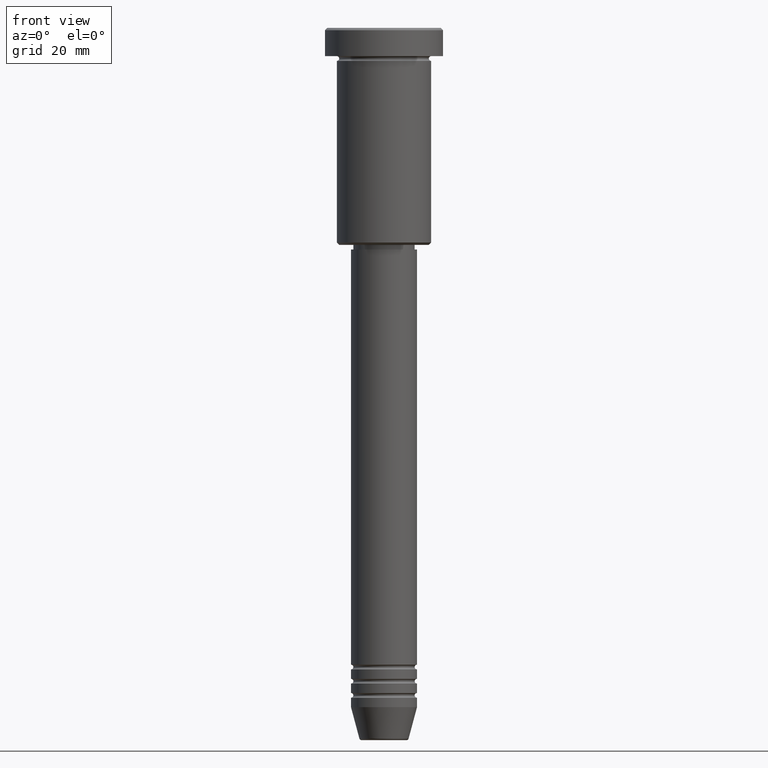
[diagram: clean part render]
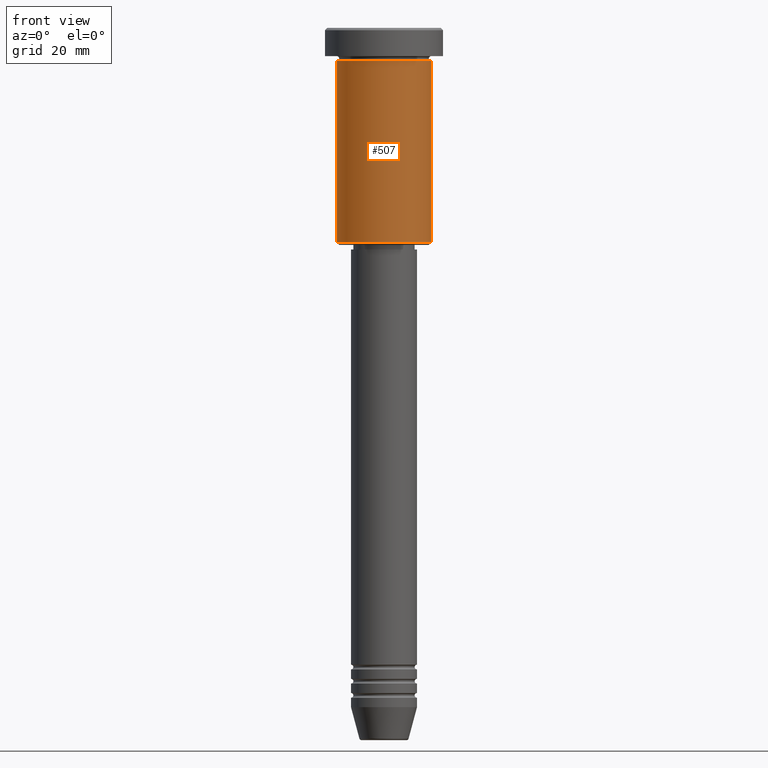
[diagram: same view with one face highlighted and labeled with its STEP entity id]
A machine part, front view. The second image highlights one B-rep face of the part: STEP entity #507.
In plain terms, the highlighted cylindrical surface (partial cylindrical patch) has radius 10 mm, axis along (-0, -0, 1).
Its self-contained STEP definition (entity closure, byte-faithful):
#32 = AXIS2_PLACEMENT_3D ( 'NONE', #942, #489, #855 ) ;
#49 = FACE_OUTER_BOUND ( 'NONE', #987, .T. ) ;
#66 = EDGE_CURVE ( 'NONE', #675, #476, #679, .T. ) ;
#68 = DIRECTION ( 'NONE',  ( -0.000000000000000000, -0.000000000000000000, 1.000000000000000000 ) ) ;
#171 = CARTESIAN_POINT ( 'NONE',  ( 10.00000000000000000, 0.000000000000000000, -6.999999999999996447 ) ) ;
#227 = DIRECTION ( 'NONE',  ( -0.000000000000000000, -0.000000000000000000, 1.000000000000000000 ) ) ;
#269 = ORIENTED_EDGE ( 'NONE', *, *, #314, .T. ) ;
#306 = DIRECTION ( 'NONE',  ( 1.000000000000000000, 0.000000000000000000, 0.000000000000000000 ) ) ;
#314 = EDGE_CURVE ( 'NONE', #890, #757, #753, .T. ) ;
#354 = ORIENTED_EDGE ( 'NONE', *, *, #1025, .F. ) ;
#387 = ORIENTED_EDGE ( 'NONE', *, *, #487, .T. ) ;
#397 = DIRECTION ( 'NONE',  ( -0.000000000000000000, -0.000000000000000000, 1.000000000000000000 ) ) ;
#409 = CYLINDRICAL_SURFACE ( 'NONE', #920, 10.00000000000000000 ) ;
#412 = CIRCLE ( 'NONE', #1055, 10.00000000000000000 ) ;
#476 = VERTEX_POINT ( 'NONE', #1125 ) ;
#487 = EDGE_CURVE ( 'NONE', #675, #890, #742, .T. ) ;
#489 = DIRECTION ( 'NONE',  ( -0.000000000000000000, -0.000000000000000000, 1.000000000000000000 ) ) ;
#501 = CARTESIAN_POINT ( 'NONE',  ( 10.00000000000000000, 0.000000000000000000, 0.000000000000000000 ) ) ;
#507 = ADVANCED_FACE ( 'NONE', ( #49 ), #409, .T. ) ;
#650 = CARTESIAN_POINT ( 'NONE',  ( 10.00000000000000000, 0.000000000000000000, -45.50000000000001421 ) ) ;
#675 = VERTEX_POINT ( 'NONE', #1174 ) ;
#679 = LINE ( 'NONE', #856, #804 ) ;
#742 = CIRCLE ( 'NONE', #32, 10.00000000000000000 ) ;
#743 = CARTESIAN_POINT ( 'NONE',  ( 0.000000000000000000, 0.000000000000000000, -6.999999999999996447 ) ) ;
#752 = ORIENTED_EDGE ( 'NONE', *, *, #66, .F. ) ;
#753 = LINE ( 'NONE', #501, #1037 ) ;
#757 = VERTEX_POINT ( 'NONE', #171 ) ;
#789 = DIRECTION ( 'NONE',  ( 1.000000000000000000, 0.000000000000000000, 0.000000000000000000 ) ) ;
#804 = VECTOR ( 'NONE', #68, 1000.000000000000000 ) ;
#855 = DIRECTION ( 'NONE',  ( -1.000000000000000000, 0.000000000000000000, 0.000000000000000000 ) ) ;
#856 = CARTESIAN_POINT ( 'NONE',  ( -10.00000000000000000, 1.224646799147353256E-15, 0.000000000000000000 ) ) ;
#890 = VERTEX_POINT ( 'NONE', #650 ) ;
#920 = AXIS2_PLACEMENT_3D ( 'NONE', #1133, #227, #789 ) ;
#942 = CARTESIAN_POINT ( 'NONE',  ( 0.000000000000000000, 0.000000000000000000, -45.50000000000001421 ) ) ;
#987 = EDGE_LOOP ( 'NONE', ( #752, #387, #269, #354 ) ) ;
#1025 = EDGE_CURVE ( 'NONE', #476, #757, #412, .T. ) ;
#1037 = VECTOR ( 'NONE', #1124, 1000.000000000000000 ) ;
#1055 = AXIS2_PLACEMENT_3D ( 'NONE', #743, #397, #306 ) ;
#1124 = DIRECTION ( 'NONE',  ( -0.000000000000000000, -0.000000000000000000, 1.000000000000000000 ) ) ;
#1125 = CARTESIAN_POINT ( 'NONE',  ( -10.00000000000000000, 1.224646799147353256E-15, -6.999999999999996447 ) ) ;
#1133 = CARTESIAN_POINT ( 'NONE',  ( 0.000000000000000000, 0.000000000000000000, 0.000000000000000000 ) ) ;
#1174 = CARTESIAN_POINT ( 'NONE',  ( -10.00000000000000000, 1.224646799147353256E-15, -45.50000000000001421 ) ) ;